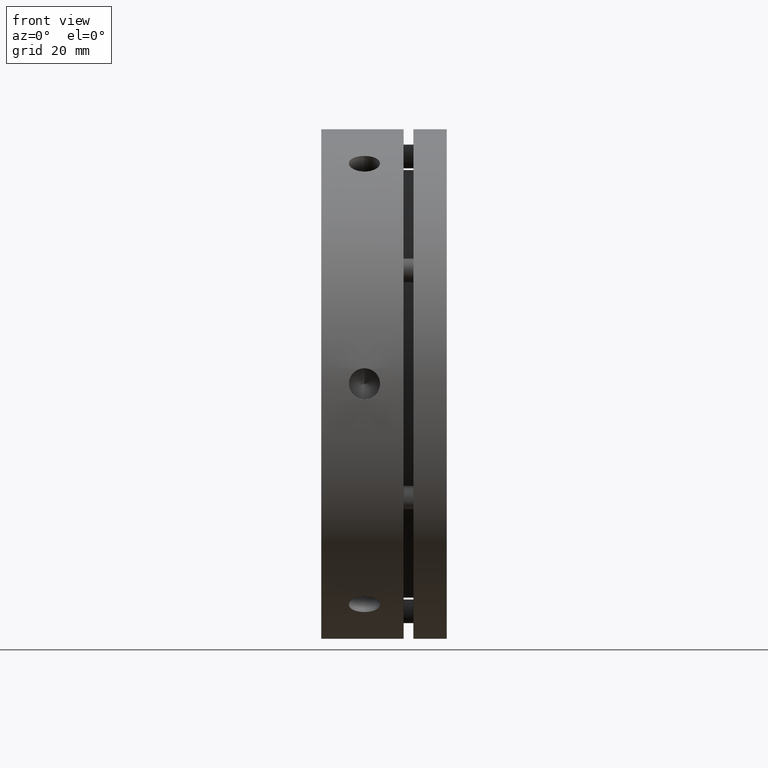
[diagram: clean part render]
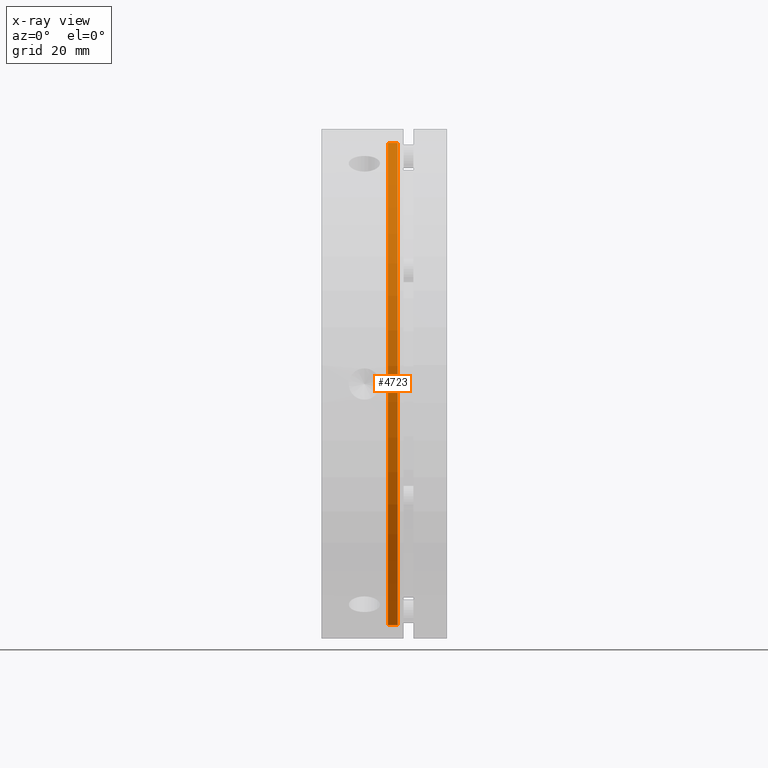
[diagram: x-ray — body ghosted, one internal face saturated and labeled with its STEP entity id]
A machine part, front view, then the same camera in x-ray: the body is ghosted and one INTERNAL B-rep face — a face not visible from any outside direction — is saturated and labeled: STEP entity #4723.
In plain terms, the highlighted cylindrical surface (partial cylindrical patch) has radius 61.5 mm, axis along (-1, 0, 0).
Its self-contained STEP definition (entity closure, byte-faithful):
#20 = FACE_OUTER_BOUND ( 'NONE', #3441, .T. ) ;
#185 = VERTEX_POINT ( 'NONE', #4351 ) ;
#186 = VERTEX_POINT ( 'NONE', #4352 ) ;
#191 = VERTEX_POINT ( 'NONE', #4357 ) ;
#192 = VERTEX_POINT ( 'NONE', #4358 ) ;
#299 = CYLINDRICAL_SURFACE ( 'NONE', #3826, 61.50000000000000000 ) ;
#405 = EDGE_CURVE ( 'NONE', #192, #185, #3943, .T. ) ;
#406 = EDGE_CURVE ( 'NONE', #186, #185, #3945, .T. ) ;
#407 = EDGE_CURVE ( 'NONE', #191, #186, #3942, .T. ) ;
#408 = EDGE_CURVE ( 'NONE', #192, #191, #3939, .T. ) ;
#634 = DIRECTION ( 'NONE',  ( -1.000000000000000000, 0.0000000000000000000, 0.0000000000000000000 ) ) ;
#639 = CARTESIAN_POINT ( 'NONE',  ( 18.24999999999998900, 0.0000000000000000000, 61.50000000000000000 ) ) ;
#643 = DIRECTION ( 'NONE',  ( -1.000000000000000000, 0.0000000000000000000, 0.0000000000000000000 ) ) ;
#646 = CARTESIAN_POINT ( 'NONE',  ( 18.24999999999998900, 7.531577814756222700E-015, -61.50000000000000000 ) ) ;
#647 = CARTESIAN_POINT ( 'NONE',  ( 16.99999999999999300, 0.0000000000000000000, 0.0000000000000000000 ) ) ;
#648 = DIRECTION ( 'NONE',  ( -1.000000000000000000, 0.0000000000000000000, 0.0000000000000000000 ) ) ;
#649 = DIRECTION ( 'NONE',  ( 0.0000000000000000000, 0.0000000000000000000, 1.000000000000000000 ) ) ;
#650 = CARTESIAN_POINT ( 'NONE',  ( 19.49999999999998900, 0.0000000000000000000, 0.0000000000000000000 ) ) ;
#651 = DIRECTION ( 'NONE',  ( 1.000000000000000000, -0.0000000000000000000, -0.0000000000000000000 ) ) ;
#652 = DIRECTION ( 'NONE',  ( 0.0000000000000000000, 0.0000000000000000000, 1.000000000000000000 ) ) ;
#1995 = DIRECTION ( 'NONE',  ( 0.0000000000000000000, 0.0000000000000000000, 1.000000000000000000 ) ) ;
#1997 = DIRECTION ( 'NONE',  ( -1.000000000000000000, 0.0000000000000000000, 0.0000000000000000000 ) ) ;
#1999 = CARTESIAN_POINT ( 'NONE',  ( 18.24999999999998900, 0.0000000000000000000, 0.0000000000000000000 ) ) ;
#2534 = ORIENTED_EDGE ( 'NONE', *, *, #405, .F. ) ;
#2538 = ORIENTED_EDGE ( 'NONE', *, *, #406, .T. ) ;
#2540 = ORIENTED_EDGE ( 'NONE', *, *, #407, .T. ) ;
#2543 = ORIENTED_EDGE ( 'NONE', *, *, #408, .T. ) ;
#3441 = EDGE_LOOP ( 'NONE', ( #2543, #2540, #2538, #2534 ) ) ;
#3826 = AXIS2_PLACEMENT_3D ( 'NONE', #1999, #1997, #1995 ) ;
#3938 = VECTOR ( 'NONE', #643, 1000.000000000000000 ) ;
#3939 = CIRCLE ( 'NONE', #4214, 61.50000000000000000 ) ;
#3941 = VECTOR ( 'NONE', #634, 1000.000000000000000 ) ;
#3942 = LINE ( 'NONE', #646, #3938 ) ;
#3943 = LINE ( 'NONE', #639, #3941 ) ;
#3945 = CIRCLE ( 'NONE', #4215, 61.50000000000000000 ) ;
#4214 = AXIS2_PLACEMENT_3D ( 'NONE', #650, #651, #652 ) ;
#4215 = AXIS2_PLACEMENT_3D ( 'NONE', #647, #648, #649 ) ;
#4351 = CARTESIAN_POINT ( 'NONE',  ( 16.99999999999999300, 0.0000000000000000000, 61.50000000000000000 ) ) ;
#4352 = CARTESIAN_POINT ( 'NONE',  ( 16.99999999999999300, 7.531577814756222700E-015, -61.50000000000000000 ) ) ;
#4357 = CARTESIAN_POINT ( 'NONE',  ( 19.49999999999998900, 7.531577814756222700E-015, -61.50000000000000000 ) ) ;
#4358 = CARTESIAN_POINT ( 'NONE',  ( 19.49999999999998900, 0.0000000000000000000, 61.50000000000000000 ) ) ;
#4723 = ADVANCED_FACE ( 'NONE', ( #20 ), #299, .F. ) ;